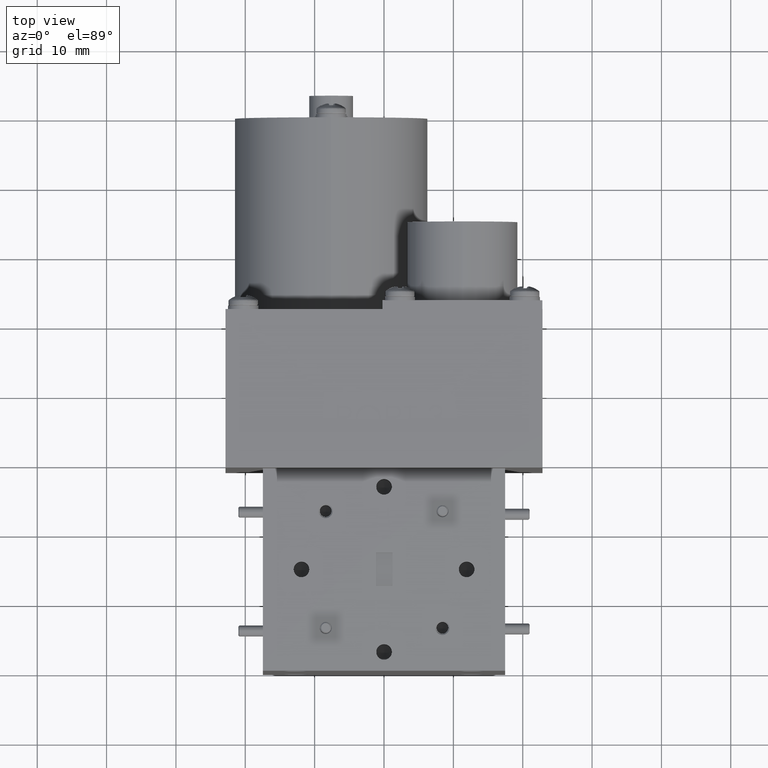
[diagram: clean part render]
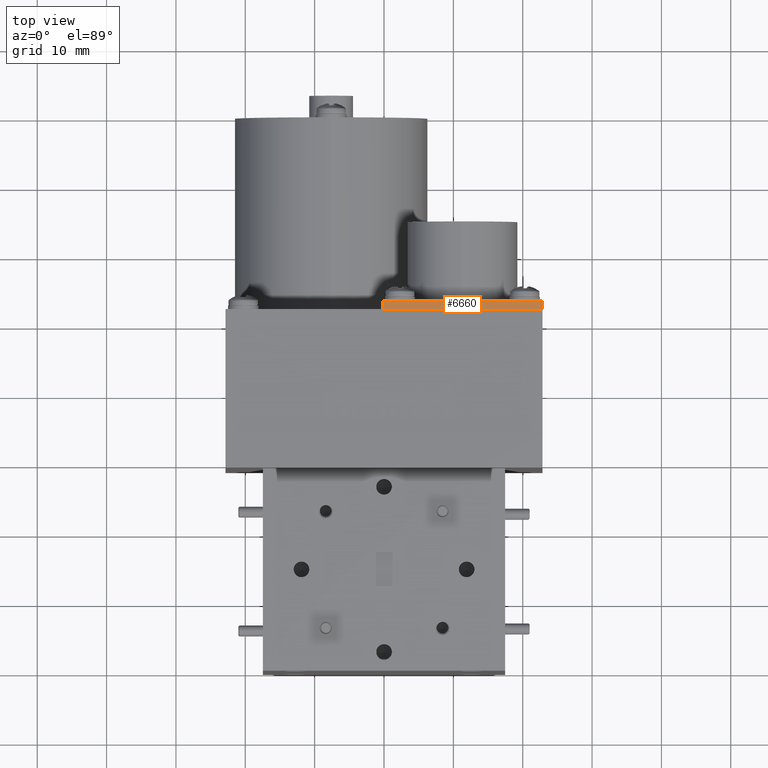
[diagram: same view with one face highlighted and labeled with its STEP entity id]
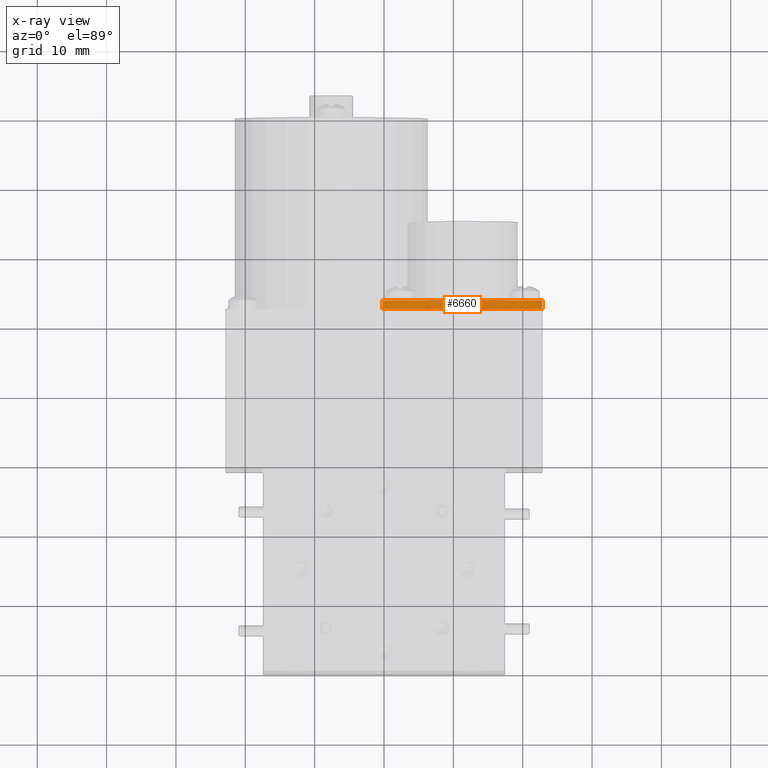
[diagram: x-ray of the same camera — body ghosted, the highlighted face saturated]
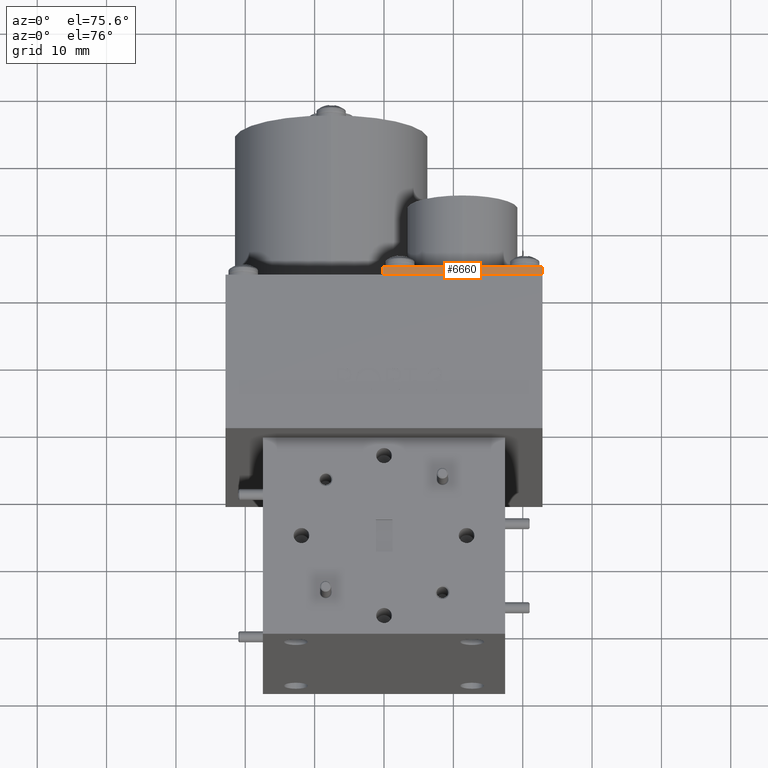
[diagram: same view with one face highlighted and labeled with its STEP entity id]
A machine part, top view. The second image highlights one B-rep face of the part: STEP entity #6660.
The next image is the same camera in x-ray: the body ghosted, the highlighted face saturated — about 0% of this face is hidden behind the body in this view.
A second angle (auxiliary view) of the same face is appended — the face is thin or edge-on in the first view.
In plain terms, the highlighted planar face has unit normal (-0, 0, -1).
Its self-contained STEP definition (entity closure, byte-faithful):
#1588 = VERTEX_POINT ( 'NONE', #33892 ) ;
#2183 = PLANE ( 'NONE',  #13522 ) ;
#2510 = ORIENTED_EDGE ( 'NONE', *, *, #8404, .T. ) ;
#4035 = LINE ( 'NONE', #28477, #25324 ) ;
#5817 = EDGE_CURVE ( 'NONE', #9810, #1588, #35076, .T. ) ;
#6660 = ADVANCED_FACE ( 'NONE', ( #30538 ), #2183, .F. ) ;
#7905 = VECTOR ( 'NONE', #17291, 39.37007874015748100 ) ;
#8222 = CARTESIAN_POINT ( 'NONE',  ( 0.8990000000000001300, 2.099999999999999600, 0.8990000000000001300 ) ) ;
#8404 = EDGE_CURVE ( 'NONE', #1588, #28017, #4035, .T. ) ;
#9810 = VERTEX_POINT ( 'NONE', #29648 ) ;
#10568 = ORIENTED_EDGE ( 'NONE', *, *, #17196, .F. ) ;
#10701 = VECTOR ( 'NONE', #18972, 39.37007874015748100 ) ;
#11052 = CARTESIAN_POINT ( 'NONE',  ( 0.8990000000000001300, 2.099999999999999600, 0.8990000000000001300 ) ) ;
#13522 = AXIS2_PLACEMENT_3D ( 'NONE', #37226, #21028, #14659 ) ;
#14659 = DIRECTION ( 'NONE',  ( -1.000000000000000000, 0.0000000000000000000, 1.502666663181662400E-016 ) ) ;
#15982 = ORIENTED_EDGE ( 'NONE', *, *, #17129, .F. ) ;
#17129 = EDGE_CURVE ( 'NONE', #19535, #28017, #28696, .T. ) ;
#17196 = EDGE_CURVE ( 'NONE', #9810, #19535, #40397, .T. ) ;
#17291 = DIRECTION ( 'NONE',  ( -0.0000000000000000000, -1.000000000000000000, -0.0000000000000000000 ) ) ;
#18512 = DIRECTION ( 'NONE',  ( 1.000000000000000000, -0.0000000000000000000, -1.502666663181662400E-016 ) ) ;
#18972 = DIRECTION ( 'NONE',  ( -0.0000000000000000000, -1.000000000000000000, -0.0000000000000000000 ) ) ;
#19535 = VERTEX_POINT ( 'NONE', #29772 ) ;
#21028 = DIRECTION ( 'NONE',  ( -1.502666663181662400E-016, 0.0000000000000000000, -1.000000000000000000 ) ) ;
#25324 = VECTOR ( 'NONE', #18512, 39.37007874015748100 ) ;
#25341 = EDGE_LOOP ( 'NONE', ( #2510, #15982, #10568, #34311 ) ) ;
#28017 = VERTEX_POINT ( 'NONE', #41873 ) ;
#28477 = CARTESIAN_POINT ( 'NONE',  ( 0.8990000000000001300, 2.049999999999999800, 0.8990000000000001300 ) ) ;
#28696 = LINE ( 'NONE', #11052, #7905 ) ;
#29648 = CARTESIAN_POINT ( 'NONE',  ( -0.01000000000000016700, 2.099999999999999600, 0.8990000000000003500 ) ) ;
#29772 = CARTESIAN_POINT ( 'NONE',  ( 0.8990000000000001300, 2.099999999999999600, 0.8990000000000001300 ) ) ;
#30538 = FACE_OUTER_BOUND ( 'NONE', #25341, .T. ) ;
#33892 = CARTESIAN_POINT ( 'NONE',  ( -0.01000000000000016700, 2.049999999999999800, 0.8990000000000003500 ) ) ;
#34311 = ORIENTED_EDGE ( 'NONE', *, *, #5817, .T. ) ;
#35025 = CARTESIAN_POINT ( 'NONE',  ( -0.01000000000000016700, 2.099999999999999600, 0.8990000000000003500 ) ) ;
#35076 = LINE ( 'NONE', #35025, #10701 ) ;
#37226 = CARTESIAN_POINT ( 'NONE',  ( 0.8990000000000001300, 2.099999999999999600, 0.8990000000000001300 ) ) ;
#38351 = VECTOR ( 'NONE', #41264, 39.37007874015748100 ) ;
#40397 = LINE ( 'NONE', #8222, #38351 ) ;
#41264 = DIRECTION ( 'NONE',  ( 1.000000000000000000, -0.0000000000000000000, -1.502666663181662400E-016 ) ) ;
#41873 = CARTESIAN_POINT ( 'NONE',  ( 0.8990000000000001300, 2.049999999999999800, 0.8990000000000001300 ) ) ;